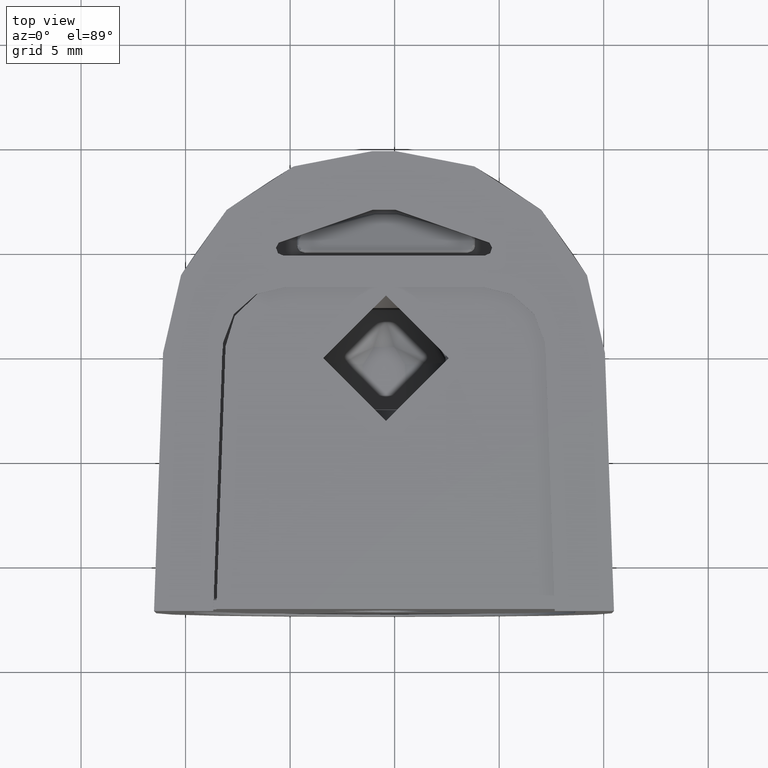
[diagram: clean part render]
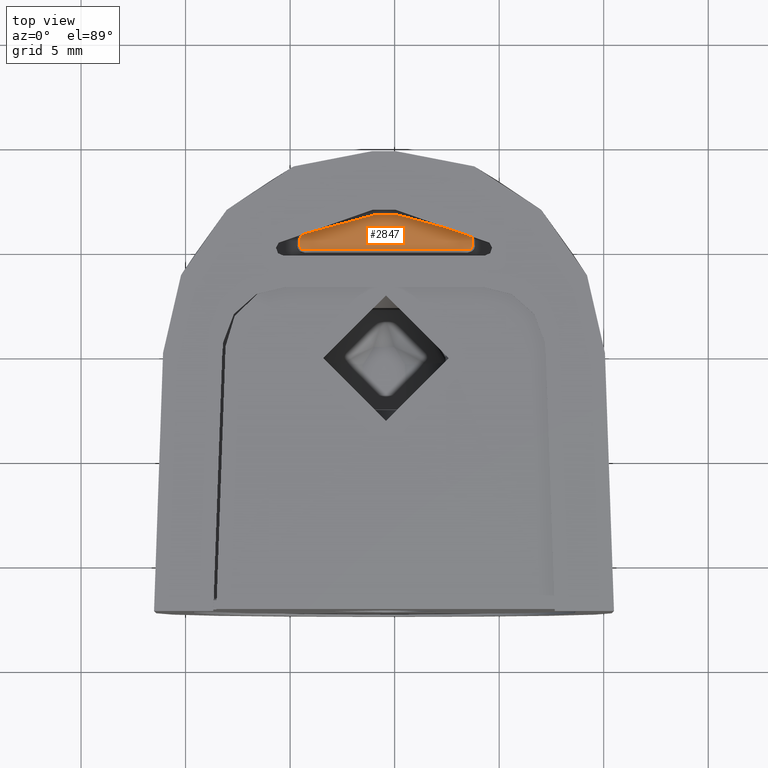
[diagram: same view with one face highlighted and labeled with its STEP entity id]
A machine part, top view. The second image highlights one B-rep face of the part: STEP entity #2847.
In plain terms, the highlighted planar face has unit normal (-0, -0.3173, -0.9483).
Its self-contained STEP definition (entity closure, byte-faithful):
#131=B_SPLINE_CURVE_WITH_KNOTS('',3,(#6936,#6937,#6938,#6939,#6940,#6941,
#6942,#6943,#6944,#6945,#6946,#6947,#6948,#6949,#6950,#6951),
 .UNSPECIFIED.,.F.,.F.,(4,3,3,3,3,4),(2.32636196315342E-9,0.20000000186109,
0.400000001395817,0.600000000930545,0.800000000465273,1.),.UNSPECIFIED.);
#133=B_SPLINE_CURVE_WITH_KNOTS('',3,(#7030,#7031,#7032,#7033,#7034,#7035,
#7036,#7037,#7038,#7039,#7040,#7041,#7042,#7043,#7044,#7045),
 .UNSPECIFIED.,.F.,.F.,(4,3,3,3,3,4),(0.,0.199999995666698,0.399999991333396,
0.599999987000094,0.799999982666793,0.999999978333491),.UNSPECIFIED.);
#134=B_SPLINE_CURVE_WITH_KNOTS('',3,(#7086,#7087,#7088,#7089,#7090,#7091,
#7092,#7093,#7094,#7095,#7096,#7097,#7098),.UNSPECIFIED.,.F.,.F.,(4,3,3,
3,4),(0.,0.25,0.5,0.75,1.),.UNSPECIFIED.);
#135=B_SPLINE_CURVE_WITH_KNOTS('',3,(#7149,#7150,#7151,#7152,#7153,#7154,
#7155,#7156,#7157,#7158,#7159,#7160,#7161),.UNSPECIFIED.,.F.,.F.,(4,3,3,
3,4),(0.,0.249999943680702,0.499999887361404,0.749999831042106,0.999999774722808),
 .UNSPECIFIED.);
#139=B_SPLINE_CURVE_WITH_KNOTS('',3,(#7308,#7309,#7310,#7311,#7312,#7313,
#7314,#7315,#7316,#7317,#7318,#7319,#7320),.UNSPECIFIED.,.F.,.F.,(4,3,3,
3,4),(0.,0.25,0.5,0.75,1.),.UNSPECIFIED.);
#140=B_SPLINE_CURVE_WITH_KNOTS('',3,(#7323,#7324,#7325,#7326,#7327,#7328,
#7329,#7330,#7331,#7332,#7333,#7334,#7335),.UNSPECIFIED.,.F.,.F.,(4,3,3,
3,4),(0.,0.25,0.5,0.75,1.),.UNSPECIFIED.);
#490=FACE_OUTER_BOUND('',#668,.T.);
#668=EDGE_LOOP('',(#2608,#2609,#2610,#2611,#2612,#2613,#2614,#2615,#2616,
#2617));
#868=LINE('',#6957,#1080);
#874=LINE('',#7108,#1086);
#882=LINE('',#7269,#1094);
#883=LINE('',#7336,#1095);
#1080=VECTOR('',#3847,1.0836963286878);
#1086=VECTOR('',#3869,0.297501267703245);
#1094=VECTOR('',#3905,0.297501272870174);
#1095=VECTOR('',#3914,8.10598734264768);
#1360=VERTEX_POINT('',#6933);
#1361=VERTEX_POINT('',#6935);
#1363=VERTEX_POINT('',#6956);
#1365=VERTEX_POINT('',#7029);
#1367=VERTEX_POINT('',#7085);
#1369=VERTEX_POINT('',#7107);
#1371=VERTEX_POINT('',#7148);
#1377=VERTEX_POINT('',#7242);
#1380=VERTEX_POINT('',#7266);
#1381=VERTEX_POINT('',#7268);
#1755=EDGE_CURVE('',#1360,#1361,#131,.T.);
#1758=EDGE_CURVE('',#1361,#1363,#868,.T.);
#1763=EDGE_CURVE('',#1363,#1365,#133,.T.);
#1766=EDGE_CURVE('',#1365,#1367,#134,.T.);
#1771=EDGE_CURVE('',#1367,#1369,#874,.T.);
#1774=EDGE_CURVE('',#1369,#1371,#135,.T.);
#1791=EDGE_CURVE('',#1380,#1381,#882,.T.);
#1794=EDGE_CURVE('',#1381,#1360,#139,.T.);
#1795=EDGE_CURVE('',#1377,#1380,#140,.T.);
#1796=EDGE_CURVE('',#1371,#1377,#883,.T.);
#2608=ORIENTED_EDGE('',*,*,#1766,.F.);
#2609=ORIENTED_EDGE('',*,*,#1763,.F.);
#2610=ORIENTED_EDGE('',*,*,#1758,.F.);
#2611=ORIENTED_EDGE('',*,*,#1755,.F.);
#2612=ORIENTED_EDGE('',*,*,#1794,.F.);
#2613=ORIENTED_EDGE('',*,*,#1791,.F.);
#2614=ORIENTED_EDGE('',*,*,#1795,.F.);
#2615=ORIENTED_EDGE('',*,*,#1796,.F.);
#2616=ORIENTED_EDGE('',*,*,#1774,.F.);
#2617=ORIENTED_EDGE('',*,*,#1771,.F.);
#2685=PLANE('',#3134);
#2847=ADVANCED_FACE('',(#490),#2685,.F.);
#3134=AXIS2_PLACEMENT_3D('',#7322,#3912,#3913);
#3847=DIRECTION('',(1.,0.,0.));
#3869=DIRECTION('',(-4.47819104604099E-14,-0.948323655206197,0.317304656405099));
#3905=DIRECTION('',(0.,0.948323655206197,-0.317304656405099));
#3912=DIRECTION('center_axis',(0.,-0.317304656405099,-0.948323655206197));
#3913=DIRECTION('ref_axis',(0.,0.948323655206197,-0.317304656405098));
#3914=DIRECTION('',(-1.,-7.853148537356E-12,2.62777841831E-12));
#6933=CARTESIAN_POINT('',(-4.02727076060956,17.9290373318145,-1.03339066983902));
#6935=CARTESIAN_POINT('',(-0.5418481643439,18.88173046564,-1.352157333339));
#6936=CARTESIAN_POINT('Ctrl Pts',(-4.02727076060958,17.9290373318145,-1.03339066983914));
#6937=CARTESIAN_POINT('Ctrl Pts',(-3.84488537337898,18.0369127208825,-1.06948527011075));
#6938=CARTESIAN_POINT('Ctrl Pts',(-3.6551062341805,18.1369421202448,-1.10295463894968));
#6939=CARTESIAN_POINT('Ctrl Pts',(-3.46379542468742,18.2271721419839,-1.13314518190209));
#6940=CARTESIAN_POINT('Ctrl Pts',(-3.27248461519433,18.3174021637231,-1.1633357248545));
#6941=CARTESIAN_POINT('Ctrl Pts',(-3.07964214190367,18.3978328042764,-1.19024744072831));
#6942=CARTESIAN_POINT('Ctrl Pts',(-2.86740508231301,18.4739038150748,-1.21570044489122));
#6943=CARTESIAN_POINT('Ctrl Pts',(-2.65516802272234,18.5499748258731,-1.24115344905413));
#6944=CARTESIAN_POINT('Ctrl Pts',(-2.42353637683167,18.6216862069165,-1.26514774150615));
#6945=CARTESIAN_POINT('Ctrl Pts',(-2.17635572527467,18.6825029349149,-1.28549673404174));
#6946=CARTESIAN_POINT('Ctrl Pts',(-1.92917507371766,18.7433196629132,-1.30584572657733));
#6947=CARTESIAN_POINT('Ctrl Pts',(-1.66644541649433,18.7932417378665,-1.3225494191965));
#6948=CARTESIAN_POINT('Ctrl Pts',(-1.39344559452926,18.8278436055681,-1.33412704217572));
#6949=CARTESIAN_POINT('Ctrl Pts',(-1.1204457725642,18.8624454732697,-1.34570466515494));
#6950=CARTESIAN_POINT('Ctrl Pts',(-0.8371757858574,18.8817271337196,-1.35215621849426));
#6951=CARTESIAN_POINT('Ctrl Pts',(-0.5418481643439,18.8817304656402,-1.35215733333846));
#6956=CARTESIAN_POINT('',(0.5418481643439,18.88173046564,-1.352157333339));
#6957=CARTESIAN_POINT('',(-0.5418481643439,18.88173046564,-1.352157333339));
#7029=CARTESIAN_POINT('',(4.02727068990633,17.9290373736328,-1.033390683831));
#7030=CARTESIAN_POINT('Ctrl Pts',(0.5418481643439,18.8817304656403,-1.352157333338));
#7031=CARTESIAN_POINT('Ctrl Pts',(0.8077078993218,18.8817286604101,-1.35215672931575));
#7032=CARTESIAN_POINT('Ctrl Pts',(1.0621755119654,18.8655395679799,-1.34673993476246));
#7033=CARTESIAN_POINT('Ctrl Pts',(1.29958139205087,18.8390606123965,-1.3378802001594));
#7034=CARTESIAN_POINT('Ctrl Pts',(1.53698727213634,18.8125816568131,-1.32902046555633));
#7035=CARTESIAN_POINT('Ctrl Pts',(1.75733141966367,18.7758128380764,-1.31671779090356));
#7036=CARTESIAN_POINT('Ctrl Pts',(1.977725837555,18.7282557883099,-1.30080542464217));
#7037=CARTESIAN_POINT('Ctrl Pts',(2.19812025544634,18.6806987385434,-1.28489305838078));
#7038=CARTESIAN_POINT('Ctrl Pts',(2.41856494370167,18.6223534577471,-1.26537100051076));
#7039=CARTESIAN_POINT('Ctrl Pts',(2.6419991989945,18.5506309718571,-1.24137299242877));
#7040=CARTESIAN_POINT('Ctrl Pts',(2.86543345428734,18.4789084859672,-1.21737498434677));
#7041=CARTESIAN_POINT('Ctrl Pts',(3.09185727661767,18.3938087949836,-1.18890102605287));
#7042=CARTESIAN_POINT('Ctrl Pts',(3.32303333181834,18.2914047777819,-1.15463712119879));
#7043=CARTESIAN_POINT('Ctrl Pts',(3.554209387019,18.1890007605803,-1.12037321634471));
#7044=CARTESIAN_POINT('Ctrl Pts',(3.79013759597861,18.0692924596357,-1.08031937914224));
#7045=CARTESIAN_POINT('Ctrl Pts',(4.02727068990631,17.9290373736327,-1.03339068383113));
#7085=CARTESIAN_POINT('',(4.15,17.71385797989,-0.9613926658324));
#7086=CARTESIAN_POINT('Ctrl Pts',(4.027270766974,17.9290373280503,-1.03339066857904));
#7087=CARTESIAN_POINT('Ctrl Pts',(4.044867037314,17.9186268202305,-1.02990736138841));
#7088=CARTESIAN_POINT('Ctrl Pts',(4.060768527722,17.9063126619557,-1.02578710166596));
#7089=CARTESIAN_POINT('Ctrl Pts',(4.07502041013233,17.8923736823848,-1.02112318434303));
#7090=CARTESIAN_POINT('Ctrl Pts',(4.08927229254267,17.8784347028139,-1.01645926702011));
#7091=CARTESIAN_POINT('Ctrl Pts',(4.10187456695533,17.8628709019469,-1.01125169209672));
#7092=CARTESIAN_POINT('Ctrl Pts',(4.11281857617883,17.8450382132852,-1.00528495793641));
#7093=CARTESIAN_POINT('Ctrl Pts',(4.12376258540233,17.8272055246235,-0.999318223776096));
#7094=CARTESIAN_POINT('Ctrl Pts',(4.13304832943667,17.8071039481671,-0.992592330378803));
#7095=CARTESIAN_POINT('Ctrl Pts',(4.13960667910534,17.7851926792187,-0.985260922344345));
#7096=CARTESIAN_POINT('Ctrl Pts',(4.146165028774,17.7632814102702,-0.977929514309888));
#7097=CARTESIAN_POINT('Ctrl Pts',(4.149995984077,17.7395604488297,-0.96999259163838));
#7098=CARTESIAN_POINT('Ctrl Pts',(4.15,17.7138579798904,-0.961392665831091));
#7107=CARTESIAN_POINT('',(4.14999999999999,17.4317304902733,-0.866994128303471));
#7108=CARTESIAN_POINT('',(4.15,17.71385797989,-0.9613926658324));
#7148=CARTESIAN_POINT('',(4.05299379210239,17.2340112076883,-0.800838181774998));
#7149=CARTESIAN_POINT('Ctrl Pts',(4.15,17.4317304656397,-0.866994120061607));
#7150=CARTESIAN_POINT('Ctrl Pts',(4.149997767028,17.41060763436,-0.859926519580305));
#7151=CARTESIAN_POINT('Ctrl Pts',(4.147323043533,17.3908396649701,-0.853312249545829));
#7152=CARTESIAN_POINT('Ctrl Pts',(4.142929139123,17.3726929067068,-0.847240429166404));
#7153=CARTESIAN_POINT('Ctrl Pts',(4.138535234713,17.3545461484434,-0.841168608786979));
#7154=CARTESIAN_POINT('Ctrl Pts',(4.132422149388,17.3380206013067,-0.835639238062591));
#7155=CARTESIAN_POINT('Ctrl Pts',(4.12476988479933,17.3222841368466,-0.830373890708805));
#7156=CARTESIAN_POINT('Ctrl Pts',(4.11711762021066,17.3065476723865,-0.82510854335502));
#7157=CARTESIAN_POINT('Ctrl Pts',(4.10792617635833,17.291600290603,-0.820107219371846));
#7158=CARTESIAN_POINT('Ctrl Pts',(4.09620936676092,17.276805050054,-0.815156801133467));
#7159=CARTESIAN_POINT('Ctrl Pts',(4.0844925571635,17.2620098095049,-0.810206382895088));
#7160=CARTESIAN_POINT('Ctrl Pts',(4.07025042505333,17.2473667502664,-0.805306883810743));
#7161=CARTESIAN_POINT('Ctrl Pts',(4.05299378505733,17.2340112158747,-0.800838184514179));
#7242=CARTESIAN_POINT('',(-4.05299355054529,17.2340110730335,-0.800838136720059));
#7266=CARTESIAN_POINT('',(-4.15,17.43173046564,-0.8669941200607));
#7268=CARTESIAN_POINT('',(-4.15,17.7138579601569,-0.961392659228345));
#7269=CARTESIAN_POINT('',(-4.15,17.43173046564,-0.8669941200607));
#7308=CARTESIAN_POINT('Ctrl Pts',(-4.15,17.7138579798904,-0.961392665831237));
#7309=CARTESIAN_POINT('Ctrl Pts',(-4.149997308947,17.7344919643798,-0.968296700464003));
#7310=CARTESIAN_POINT('Ctrl Pts',(-4.147435353728,17.7545890506249,-0.975021091457647));
#7311=CARTESIAN_POINT('Ctrl Pts',(-4.14266027155217,17.7739911039624,-0.981512927693261));
#7312=CARTESIAN_POINT('Ctrl Pts',(-4.13788518937633,17.7933931572999,-0.988004763928874));
#7313=CARTESIAN_POINT('Ctrl Pts',(-4.13089698024367,17.8121001777298,-0.994264045406474));
#7314=CARTESIAN_POINT('Ctrl Pts',(-4.1210752740435,17.8305872530299,-1.00044973427297));
#7315=CARTESIAN_POINT('Ctrl Pts',(-4.11125356784333,17.84907432833,-1.00663542313947));
#7316=CARTESIAN_POINT('Ctrl Pts',(-4.09859836457566,17.8673414585003,-1.01274751939485));
#7317=CARTESIAN_POINT('Ctrl Pts',(-4.08309382266733,17.8840832779578,-1.01834925382499));
#7318=CARTESIAN_POINT('Ctrl Pts',(-4.06758928075899,17.9008250974153,-1.02395098825512));
#7319=CARTESIAN_POINT('Ctrl Pts',(-4.04923540021,17.91604160616,-1.02904236085993));
#7320=CARTESIAN_POINT('Ctrl Pts',(-4.027270766974,17.9290373280503,-1.0333906685792));
#7322=CARTESIAN_POINT('Origin',(-10.97640681652,17.01608251341,-0.7279202606827));
#7323=CARTESIAN_POINT('Ctrl Pts',(-4.052993738328,17.2340111797099,-0.800838172413587));
#7324=CARTESIAN_POINT('Ctrl Pts',(-4.07015810617,17.2472955993201,-0.805283077036864));
#7325=CARTESIAN_POINT('Ctrl Pts',(-4.084365746789,17.2618518477798,-0.810153529641005));
#7326=CARTESIAN_POINT('Ctrl Pts',(-4.0961090426225,17.2766780764264,-0.815114316351906));
#7327=CARTESIAN_POINT('Ctrl Pts',(-4.107852338456,17.291504305073,-0.820075103062808));
#7328=CARTESIAN_POINT('Ctrl Pts',(-4.117131289504,17.3066005139065,-0.825126223880527));
#7329=CARTESIAN_POINT('Ctrl Pts',(-4.124797330931,17.3223405209199,-0.830392756556294));
#7330=CARTESIAN_POINT('Ctrl Pts',(-4.132463372358,17.3380805279334,-0.835659289232061));
#7331=CARTESIAN_POINT('Ctrl Pts',(-4.138516504164,17.3544643331267,-0.841141233765886));
#7332=CARTESIAN_POINT('Ctrl Pts',(-4.1429001575045,17.3725737797584,-0.847200569847759));
#7333=CARTESIAN_POINT('Ctrl Pts',(-4.147283810845,17.3906832263902,-0.853259905929632));
#7334=CARTESIAN_POINT('Ctrl Pts',(-4.14999798572,17.4105183144603,-0.859896633559502));
#7335=CARTESIAN_POINT('Ctrl Pts',(-4.15,17.4317304656402,-0.866994120060199));
#7336=CARTESIAN_POINT('',(4.052993738407,17.23401117977,-0.8008381724347));